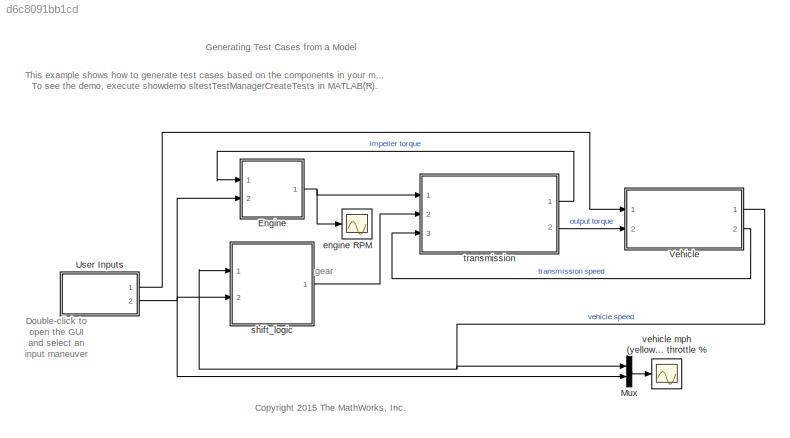
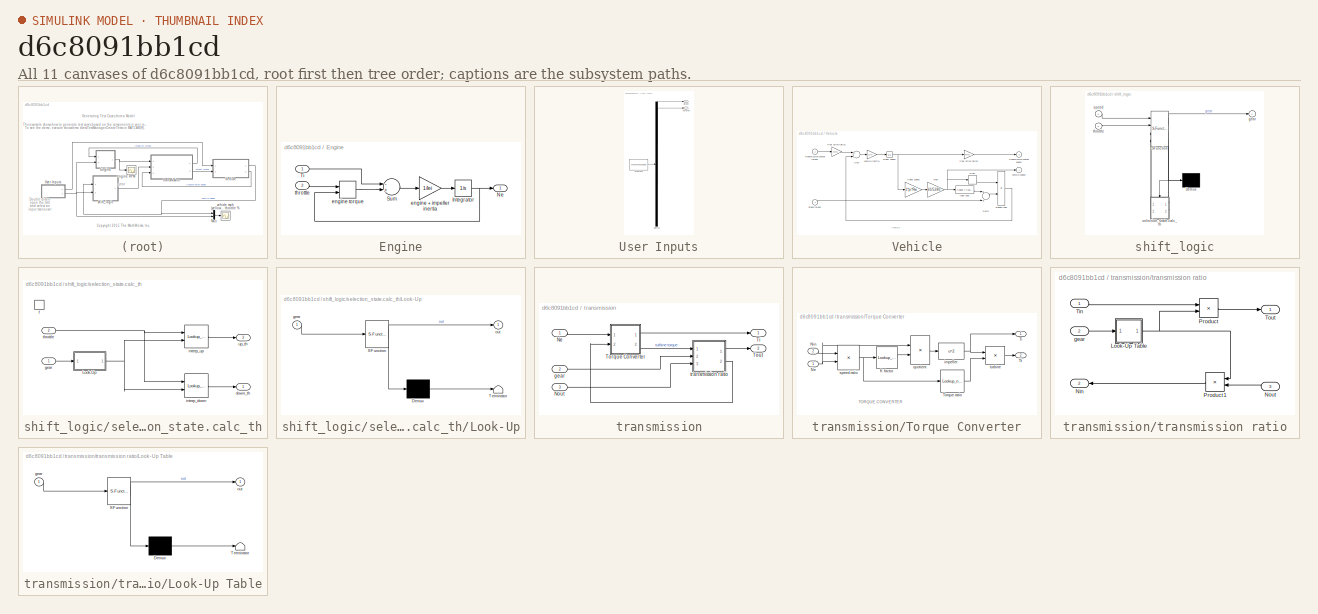
[diagram: thumbnail index - all 11 canvases of the model, root first then tree order]
MODEL slx_d6c8091bb1cd
KIND model
CONFIG AbsTol = 1e-6
CONFIG FixedStep = auto
CONFIG MaxStep = auto
CONFIG MinStep = auto
CONFIG RelTol = 1e-3
CONFIG SampleTimeConstraint = Unconstrained
CONFIG Solver = ode5
CONFIG SolverMode = SingleTasking
CONFIG SolverName = ode5
CONFIG StartTime = 0.0
CONFIG StopTime = 30
WORKSPACE source: MAT-file member
WORKSPACE Iei = 0.0219914882836
BLOCK [SubSystem] Engine
  Ports = [2, 1]
  RequestExecContextInheritance = off
  Variant = off
BLOCK [Integrator] Engine/Integrator
  InitialCondition = 1000
  LimitOutput = on
  LowerSaturationLimit = 600
  Ports = [1, 1]
  UpperSaturationLimit = 6000
  ZeroCross = off
BLOCK [Outport] Engine/Ne
  IconDisplay = Port number
BLOCK [Sum] Engine/Sum
  Inputs = -+
  Ports = [2, 1]
BLOCK [Inport] Engine/Ti
  IconDisplay = Port number
BLOCK [Gain] Engine/engine + impeller inertia
  Gain = 1/Iei
BLOCK [Lookup_n-D] Engine/engine torque
  BreakpointsForDimension1 = thvec
  BreakpointsForDimension2 = nevec
  InternalRulePriority = Speed
  Ports = [2, 1]
  Table = emap
BLOCK [Inport] Engine/throttle
  IconDisplay = Port number
  Port = 2
BLOCK [Mux] Mux
  Inputs = 2
  Ports = [2, 1]
BLOCK [SubSystem] User Inputs
  ClipboardFcn = sigbuilder_block('clipboard');
  CloseFcn = sigbuilder_block('close');
  ContinueFcn = sigbuilder_block('continue')
  CopyFcn = sigbuilder_block('copy');
  DeleteFcn = sigbuilder_block('delete');
  LoadFcn = sigbuilder_block('load');
  MaskHideContents = on
  ModelCloseFcn = sigbuilder_block('modelClose');
  NameChangeFcn = sigbuilder_block('namechange');
  OpenFcn = sigbuilder_block('open',[6 24.75 413.25 257.25 ]);
  PauseFcn = sigbuilder_block('pause')
  Ports = [0, 2]
  PreSaveFcn = sigbuilder_block('preSave');
  RequestExecContextInheritance = off
  StartFcn = sigbuilder_block('start');
  StopFcn = sigbuilder_block('stop');
  Tag = STV Subsys
  Variant = off
BLOCK [Outport] User Inputs/Brake
  IconDisplay = Port number
  Tag = STV Outport
BLOCK [Demux] User Inputs/Demux
  Outputs = 2
  Ports = [1, 2]
  Tag = STV Demux
BLOCK [FromWorkspace] User Inputs/FromWs
  SampleTime = 0
  Tag = STV FromWs
  VariableName = tuvar
BLOCK [Outport] User Inputs/Throttle
  IconDisplay = Port number
  Port = 2
  Tag = STV Outport
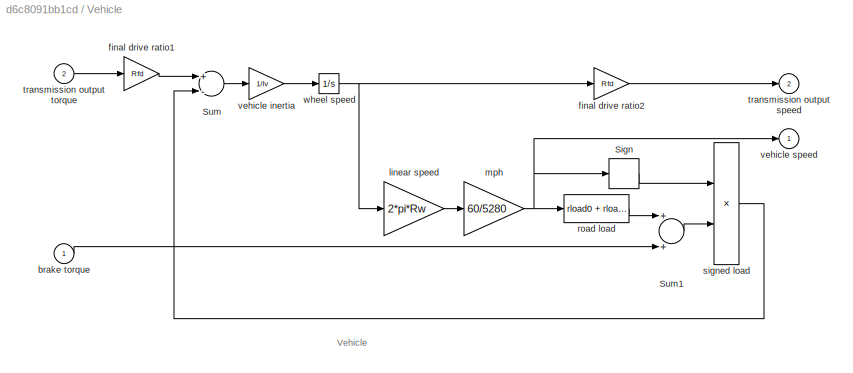
BLOCK [SubSystem] Vehicle
  Ports = [2, 2]
  RequestExecContextInheritance = off
  ShowPortLabels = none
  Variant = off
BLOCK [Signum] Vehicle/Sign
BLOCK [Sum] Vehicle/Sum
  Inputs = +-
  Ports = [2, 1]
BLOCK [Sum] Vehicle/Sum1
  Ports = [2, 1]
BLOCK [Inport] Vehicle/brake torque
  IconDisplay = Port number
BLOCK [Gain] Vehicle/final drive ratio1
  Gain = Rfd
BLOCK [Gain] Vehicle/final drive ratio2
  Gain = Rfd
BLOCK [Gain] Vehicle/linear speed
  Gain = 2*pi*Rw
BLOCK [Gain] Vehicle/mph
  Gain = 60/5280
BLOCK [Fcn] Vehicle/road load
  Expr = rload0 + rload2*u^2
BLOCK [Product] Vehicle/signed load
  Ports = [2, 1]
  RndMeth = Floor
BLOCK [Outport] Vehicle/transmission output speed
  IconDisplay = Port number
  Port = 2
BLOCK [Inport] Vehicle/transmission output torque
  IconDisplay = Port number
  Port = 2
BLOCK [Gain] Vehicle/vehicle inertia
  Gain = 1/Iv
BLOCK [Outport] Vehicle/vehicle speed
  IconDisplay = Port number
BLOCK [Integrator] Vehicle/wheel speed
  InitialCondition = N20/Rfd
  Ports = [1, 1]
  ZeroCross = off
BLOCK [Scope] engine RPM
  Ports = [1]
  ScopeSpecificationString = C++SS(StrPVP('Location','[769, 77, 1031, 370]'),StrPVP('Open','off'),StrPVP('TickLabels','on'),MxPVP('AxesTitles',24,'struct(''axes1'',''%<SignalLabel>'')'),MxPVP('ScopeGraphics',28,'struct(''FigureColor'',''[0.156862745098039 0.156862745098039 0.156862745098039]'',''AxesColor'',''[0 0 0]'',''AxesTickColor'',''[0.686274509803922 0.686274509803922 0.686274509803922]'',''LineColors'',''[1 1 0;1 0 1;...<+321ch>
BLOCK [SubSystem] shift_logic
  ErrorFcn = Stateflow.Translate.translate
  PermitHierarchicalResolution = ExplicitOnly
  Ports = [2, 1]
  RequestExecContextInheritance = off
  SFBlockType = Chart
  TreatAsAtomicUnit = on
  Variant = off
BLOCK [Demux] shift_logic/ Demux 
  Outputs = 1
  Ports = [1, 1]
BLOCK [S-Function] shift_logic/ SFunction 
  EnableBusSupport = off
  FunctionName = sf_sfun
  Parameters = TWAIT
  PortCounts = [4 4]
  Ports = [4, 4]
  SFunctionDeploymentMode = off
  Tag = Stateflow S-Function sltestTestManagerCreateTestsExample 1
BLOCK [Outport] shift_logic/ gear
  IconDisplay = Port number
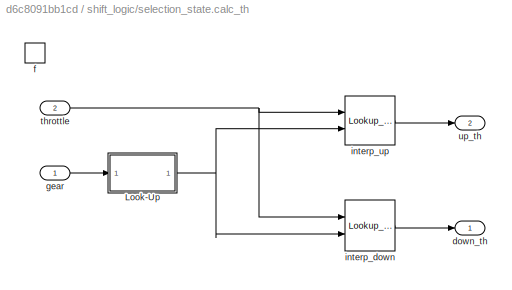
BLOCK [SubSystem] shift_logic/selection_state.calc_th
  Ports = [2, 2, 0, 1]
  PreDeleteFcn = Stateflow.SLINSF.SimulinkMan.removePreDeleteFcn
  RequestExecContextInheritance = off
  UndoDeleteFcn = Stateflow.SLINSF.SimulinkMan.restorePreDeleteFcn
  Variant = off
BLOCK [SubSystem] shift_logic/selection_state.calc_th/Look-Up
  ErrorFcn = Stateflow.Translate.translate
  PermitHierarchicalResolution = ExplicitOnly
  Ports = [1, 1]
  RequestExecContextInheritance = off
  SFBlockType = MATLAB Function
  TreatAsAtomicUnit = on
  Variant = off
BLOCK [Demux] shift_logic/selection_state.calc_th/Look-Up/ Demux 
  Outputs = 1
  Ports = [1, 1]
BLOCK [S-Function] shift_logic/selection_state.calc_th/Look-Up/ SFunction 
  EnableBusSupport = off
  FunctionName = sf_sfun
  PortCounts = [1 2]
  Ports = [1, 2]
  SFunctionDeploymentMode = off
  Tag = Stateflow S-Function sltestTestManagerCreateTestsExample 3
BLOCK [Terminator] shift_logic/selection_state.calc_th/Look-Up/ Terminator 
BLOCK [Inport] shift_logic/selection_state.calc_th/Look-Up/gear
  IconDisplay = Port number
BLOCK [Outport] shift_logic/selection_state.calc_th/Look-Up/out
  IconDisplay = Port number
BLOCK [Outport] shift_logic/selection_state.calc_th/down_th
  IconDisplay = Port number
BLOCK [TriggerPort] shift_logic/selection_state.calc_th/f
  CopyFcn = Stateflow.SLINSF.SimulinkMan.removeBlockPreDeleteFcn
  Ports = []
  PreDeleteFcn = Stateflow.SLINSF.SimulinkMan.unsafePredeleteFcn
  StatesWhenEnabling = held
  TriggerType = function-call
  VariantControl = Variant
BLOCK [Inport] shift_logic/selection_state.calc_th/gear
  IconDisplay = Port number
  OutDataTypeStr = Enum: gearType
  PortDimensions = 1
  SignalType = real
BLOCK [Lookup_n-D] shift_logic/selection_state.calc_th/interp_down
  BreakpointsForDimension1 = downth
  BreakpointsForDimension2 = [1:4]
  Ports = [2, 1]
  Table = downtab
BLOCK [Lookup_n-D] shift_logic/selection_state.calc_th/interp_up
  BreakpointsForDimension1 = upth
  BreakpointsForDimension2 = [1:4]
  Ports = [2, 1]
  Table = uptab
BLOCK [Inport] shift_logic/selection_state.calc_th/throttle
  IconDisplay = Port number
  OutDataTypeStr = double
  Port = 2
  PortDimensions = 1
  SignalType = real
BLOCK [Outport] shift_logic/selection_state.calc_th/up_th
  IconDisplay = Port number
  Port = 2
BLOCK [Inport] shift_logic/speed
  IconDisplay = Port number
BLOCK [Inport] shift_logic/throttle
  IconDisplay = Port number
  Port = 2
BLOCK [SubSystem] transmission
  Ports = [3, 2]
  RequestExecContextInheritance = off
  Variant = off
BLOCK [Inport] transmission/Ne
  IconDisplay = Port number
BLOCK [Inport] transmission/Nout
  IconDisplay = Port number
  Port = 3
BLOCK [Outport] transmission/Ti
  IconDisplay = Port number
BLOCK [SubSystem] transmission/Torque Converter
  Ports = [2, 2]
  RequestExecContextInheritance = off
  ShowPortLabels = none
  Variant = off
BLOCK [Lookup_n-D] transmission/Torque Converter/K factor
  BreakpointsForDimension1 = speedratio
  InternalRulePriority = Speed
  NumberOfTableDimensions = 1
  Ports = [1, 1]
  SaturateOnIntegerOverflow = on
  Table = Kfactor
BLOCK [Inport] transmission/Torque Converter/Ne
  IconDisplay = Port number
BLOCK [Inport] transmission/Torque Converter/Nin
  IconDisplay = Port number
  Port = 2
BLOCK [Outport] transmission/Torque Converter/Ti
  IconDisplay = Port number
BLOCK [Lookup_n-D] transmission/Torque Converter/Torque ratio
  BreakpointsForDimension1 = speedratio
  InternalRulePriority = Speed
  NumberOfTableDimensions = 1
  Ports = [1, 1]
  SaturateOnIntegerOverflow = on
  Table = Torkratio
BLOCK [Outport] transmission/Torque Converter/Tt
  IconDisplay = Port number
  Port = 2
BLOCK [Fcn] transmission/Torque Converter/impeller
  Expr = u^2
BLOCK [Product] transmission/Torque Converter/quotient
  Inputs = */
  Ports = [2, 1]
  RndMeth = Floor
BLOCK [Product] transmission/Torque Converter/speed ratio
  Inputs = */
  Ports = [2, 1]
  RndMeth = Floor
BLOCK [Product] transmission/Torque Converter/turbine
  Ports = [2, 1]
  RndMeth = Floor
BLOCK [Outport] transmission/Tout
  IconDisplay = Port number
  Port = 2
BLOCK [Inport] transmission/gear
  IconDisplay = Port number
  Port = 2
BLOCK [SubSystem] transmission/transmission ratio
  Ports = [3, 2]
  RequestExecContextInheritance = off
  Variant = off
BLOCK [SubSystem] transmission/transmission ratio/Look-Up Table
  ErrorFcn = Stateflow.Translate.translate
  PermitHierarchicalResolution = ExplicitOnly
  Ports = [1, 1]
  RequestExecContextInheritance = off
  SFBlockType = MATLAB Function
  TreatAsAtomicUnit = on
  Variant = off
BLOCK [Demux] transmission/transmission ratio/Look-Up Table/ Demux 
  Outputs = 1
  Ports = [1, 1]
BLOCK [S-Function] transmission/transmission ratio/Look-Up Table/ SFunction 
  EnableBusSupport = off
  FunctionName = sf_sfun
  PortCounts = [1 2]
  Ports = [1, 2]
  SFunctionDeploymentMode = off
  Tag = Stateflow S-Function sltestTestManagerCreateTestsExample 2
BLOCK [Terminator] transmission/transmission ratio/Look-Up Table/ Terminator 
BLOCK [Inport] transmission/transmission ratio/Look-Up Table/gear
  IconDisplay = Port number
BLOCK [Outport] transmission/transmission ratio/Look-Up Table/out
  IconDisplay = Port number
BLOCK [Outport] transmission/transmission ratio/Nin
  IconDisplay = Port number
  Port = 2
BLOCK [Inport] transmission/transmission ratio/Nout
  IconDisplay = Port number
  Port = 3
BLOCK [Product] transmission/transmission ratio/Product
  Ports = [2, 1]
  RndMeth = Floor
BLOCK [Product] transmission/transmission ratio/Product1
  Ports = [2, 1]
  RndMeth = Floor
BLOCK [Inport] transmission/transmission ratio/Tin
  IconDisplay = Port number
BLOCK [Outport] transmission/transmission ratio/Tout
  IconDisplay = Port number
BLOCK [Inport] transmission/transmission ratio/gear
  IconDisplay = Port number
  Port = 2
BLOCK [Scope] vehicle mph (yellow) & throttle %
  Ports = [1]
  ScopeSpecificationString = C++SS(StrPVP('Location','[764, 427, 1030, 731]'),StrPVP('Open','off'),StrPVP('TickLabels','on'),MxPVP('AxesTitles',24,'struct(''axes1'',''%<SignalLabel>'')'),MxPVP('ScopeGraphics',28,'struct(''FigureColor'',''[0.156862745098039 0.156862745098039 0.156862745098039]'',''AxesColor'',''[0 0 0]'',''AxesTickColor'',''[0.686274509803922 0.686274509803922 0.686274509803922]'',''LineColors'',''[1 1 0;1 0 1...<+321ch>
ANNOTATION (root): Generating Test Cases from a Model
ANNOTATION (root): This example shows how to generate test cases based on the components in your model. To see the demo, execute showdemo sltestTestManagerCreateTests in MATLAB(R).
ANNOTATION (root): <copyright redacted>
ANNOTATION (root): Double-click to open the GUI and select an input maneuver
ANNOTATION (root): gear
ANNOTATION Vehicle: Vehicle
ANNOTATION transmission/Torque Converter: TORQUE CONVERTER
NET Engine/Integrator:1 -> Engine/Ne:1, Engine/engine torque:2
LINE Engine/Sum:1 -> Engine/engine + impeller inertia:1
LINE Engine/Ti:1 -> Engine/Sum:1
LINE Engine/engine + impeller inertia:1 -> Engine/Integrator:1
LINE Engine/engine torque:1 -> Engine/Sum:2
LINE Engine/throttle:1 -> Engine/engine torque:1
NET Engine:1 -> engine RPM:1, transmission:1
LINE Mux:1 -> vehicle mph (yellow) & throttle %:1
LINE User Inputs/Demux:1 -> User Inputs/Brake:1
LINE User Inputs/Demux:2 -> User Inputs/Throttle:1
LINE User Inputs/FromWs:1 -> User Inputs/Demux:1
LINE User Inputs:1 -> Vehicle:1
NET User Inputs:2 -> Engine:2, Mux:2, shift_logic:2
LINE Vehicle/Sign:1 -> Vehicle/signed load:1
LINE Vehicle/Sum1:1 -> Vehicle/signed load:2
LINE Vehicle/Sum:1 -> Vehicle/vehicle inertia:1
LINE Vehicle/brake torque:1 -> Vehicle/Sum1:2
LINE Vehicle/final drive ratio1:1 -> Vehicle/Sum:1
LINE Vehicle/final drive ratio2:1 -> Vehicle/transmission output speed:1
LINE Vehicle/linear speed:1 -> Vehicle/mph:1
NET Vehicle/mph:1 -> Vehicle/Sign:1, Vehicle/road load:1, Vehicle/vehicle speed:1
LINE Vehicle/road load:1 -> Vehicle/Sum1:1
LINE Vehicle/signed load:1 -> Vehicle/Sum:2
LINE Vehicle/transmission output torque:1 -> Vehicle/final drive ratio1:1
LINE Vehicle/vehicle inertia:1 -> Vehicle/wheel speed:1
NET Vehicle/wheel speed:1 -> Vehicle/final drive ratio2:1, Vehicle/linear speed:1
NET Vehicle:1 -> Mux:1, shift_logic:1
LINE Vehicle:2 -> transmission:3
LINE shift_logic:1 -> transmission:2
LINE transmission/Ne:1 -> transmission/Torque Converter:1
LINE transmission/Nout:1 -> transmission/transmission ratio:3
LINE transmission/Torque Converter/K factor:1 -> transmission/Torque Converter/quotient:2
NET transmission/Torque Converter/Ne:1 -> transmission/Torque Converter/quotient:1, transmission/Torque Converter/speed ratio:2
LINE transmission/Torque Converter/Nin:1 -> transmission/Torque Converter/speed ratio:1
LINE transmission/Torque Converter/Torque ratio:1 -> transmission/Torque Converter/turbine:2
NET transmission/Torque Converter/impeller:1 -> transmission/Torque Converter/Ti:1, transmission/Torque Converter/turbine:1
LINE transmission/Torque Converter/quotient:1 -> transmission/Torque Converter/impeller:1
NET transmission/Torque Converter/speed ratio:1 -> transmission/Torque Converter/K factor:1, transmission/Torque Converter/Torque ratio:1
LINE transmission/Torque Converter/turbine:1 -> transmission/Torque Converter/Tt:1
LINE transmission/Torque Converter:1 -> transmission/Ti:1
LINE transmission/Torque Converter:2 -> transmission/transmission ratio:1
LINE transmission/gear:1 -> transmission/transmission ratio:2
NET transmission/transmission ratio/Look-Up Table:1 -> transmission/transmission ratio/Product1:1, transmission/transmission ratio/Product:2
LINE transmission/transmission ratio/Nout:1 -> transmission/transmission ratio/Product1:2
LINE transmission/transmission ratio/Product1:1 -> transmission/transmission ratio/Nin:1
LINE transmission/transmission ratio/Product:1 -> transmission/transmission ratio/Tout:1
LINE transmission/transmission ratio/Tin:1 -> transmission/transmission ratio/Product:1
LINE transmission/transmission ratio/gear:1 -> transmission/transmission ratio/Look-Up Table:1
LINE transmission/transmission ratio:1 -> transmission/Tout:1
LINE transmission/transmission ratio:2 -> transmission/Torque Converter:2
LINE transmission:1 -> Engine:1
LINE transmission:2 -> Vehicle:2
note: NET lines group one-source signal fan-out (src -> all destinations, sorted); 1:1 wires keep LINE
CHART shift_logic states=10 transitions=14
  STATE_LABEL 'gear_state'
  STATE_LABEL 'fourth\n'
  STATE_LABEL 'third\n'
  STATE_LABEL 'second\n'
  STATE_LABEL 'first\n'
  STATE_LABEL 'UP'
  STATE_LABEL 'UP'
  STATE_LABEL 'UP'
  STATE_LABEL 'DOWN'
  STATE_LABEL 'DOWN'
  STATE_LABEL 'DOWN'
  STATE_LABEL 'fourth\n'
  STATE_LABEL 'third\n'
  STATE_LABEL 'second\n'
  STATE_LABEL 'first\n'
  STATE_LABEL 'selection_state\nduring: [down_th,up_th] = calc_th(gear,throttle);'
  STATE_LABEL 'steady_state'
  STATE_LABEL 'upshifting'
  STATE_LABEL 'downshifting'
  STATE_LABEL '[down_th,up_th] = calc_th(gear,throttle)'
  STATE_LABEL '[speed > up_th]'
  STATE_LABEL '[speed < down_th]'
  STATE_LABEL 'after(TWAIT,tick)\n[speed <= down_th]\n{gear_state.DOWN}'
  STATE_LABEL '[speed > down_th]'
  STATE_LABEL 'after(TWAIT,tick)\n[speed >= up_th]\n{gear_state.UP}'
  STATE_LABEL '[speed < up_th]'
  STATE_LABEL 'steady_state'
  STATE_LABEL 'upshifting'
  STATE_LABEL 'downshifting'
  STATE_LABEL '[down_th,up_th] = calc_th(gear,throttle)'
CHART transmission/transmission
ratio/Look-Up
Table states=1 transitions=1
  STATE_LABEL 'eML_blk_kernel()'
  STATE_LABEL 'SCRIPT:\nfunction out = fcn(gear)\n    %#codegen\n    table = [2.393 1.450 1.000 0.677];\n    switch(gear)\n        case gearType.fourth;\n            out=table(4);        \n        case gearType.third;\n            out=table(3);            \n        case gearType.second;\n            out=table(2);\n        otherwise; % gearType.first\n            out=table(1);\n    end\n    \nend\n'
CHART shift_logic/selection_state.calc_th/Look-Up states=1 transitions=1
  STATE_LABEL 'eML_blk_kernel()'
  STATE_LABEL 'SCRIPT:\nfunction out = fcn(gear)\n    %#codegen\n    table = [1 2 3 4];\n    switch(gear)\n        case gearType.fourth;\n            out=table(4);        \n        case gearType.third;\n            out=table(3);\n        case gearType.second;\n            out=table(2);            \n        otherwise; % gearType.first\n            out=table(1);\n    end\n    \nend\n'
